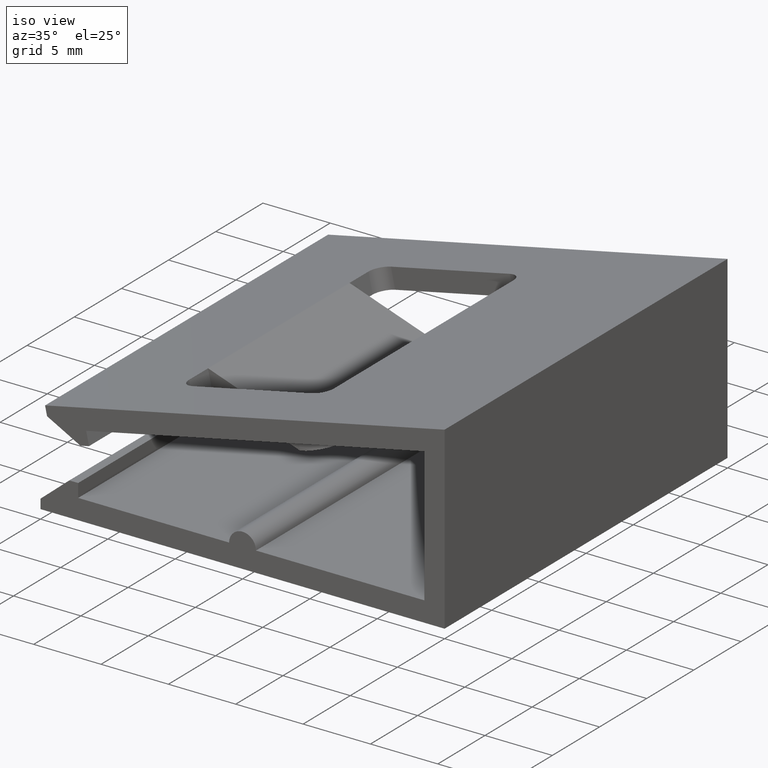
[diagram: clean part render]
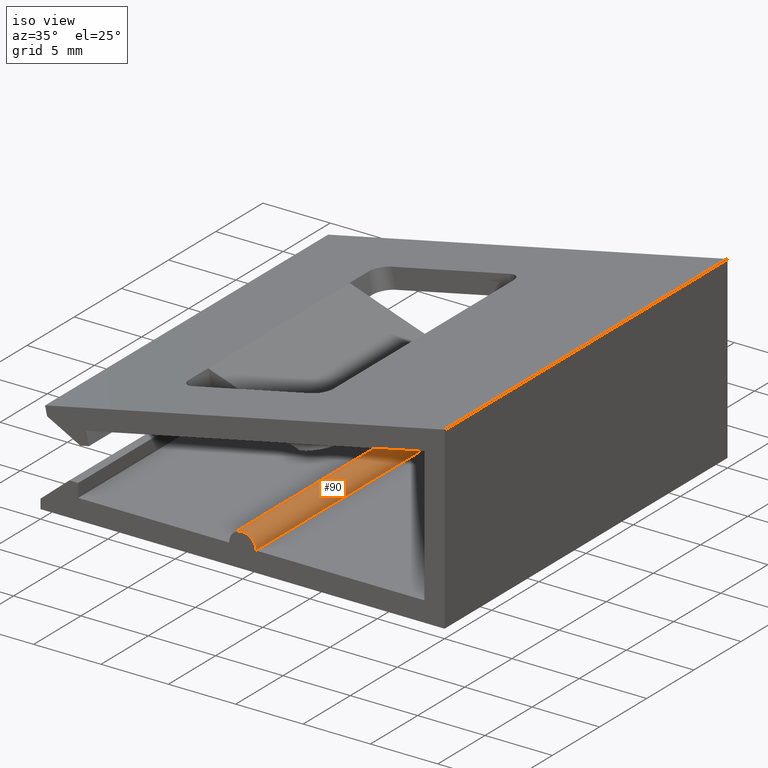
[diagram: same view with one face highlighted and labeled with its STEP entity id]
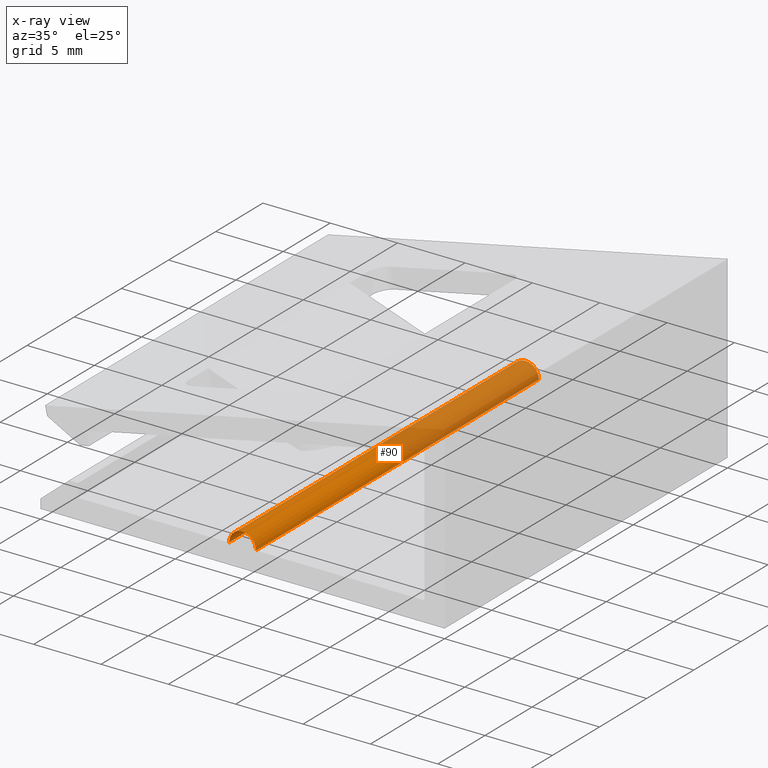
[diagram: x-ray of the same camera — body ghosted, the highlighted face saturated]
A machine part, iso view. The second image highlights one B-rep face of the part: STEP entity #90.
The next image is the same camera in x-ray: the body ghosted, the highlighted face saturated — about 47% of this face is hidden behind the body in this view.
In plain terms, the highlighted cylindrical surface (edge-blend (fillet) strip) has radius 1 mm, axis along (0, 1, 0).
Its self-contained STEP definition (entity closure, byte-faithful):
#90 = ADVANCED_FACE( '', ( #143 ), #144, .T. );
#143 = FACE_OUTER_BOUND( '', #215, .T. );
#144 = CYLINDRICAL_SURFACE( '', #216, 1.00000000000000 );
#215 = EDGE_LOOP( '', ( #392, #393, #394, #395 ) );
#216 = AXIS2_PLACEMENT_3D( '', #396, #397, #398 );
#392 = ORIENTED_EDGE( '', *, *, #615, .F. );
#393 = ORIENTED_EDGE( '', *, *, #616, .F. );
#394 = ORIENTED_EDGE( '', *, *, #599, .T. );
#395 = ORIENTED_EDGE( '', *, *, #614, .T. );
#396 = CARTESIAN_POINT( '', ( 1.56125112837913E-014, 15.0000000000000, 1.50000000000001 ) );
#397 = DIRECTION( '', ( 6.12303176911189E-017, 1.00000000000000, 1.83690953073357E-016 ) );
#398 = DIRECTION( '', ( 1.00000000000000, -6.12303176911189E-017, 0.000000000000000 ) );
#599 = EDGE_CURVE( '', #736, #734, #737, .T. );
#614 = EDGE_CURVE( '', #734, #758, #760, .T. );
#615 = EDGE_CURVE( '', #761, #758, #762, .T. );
#616 = EDGE_CURVE( '', #736, #761, #763, .T. );
#734 = VERTEX_POINT( '', #927 );
#736 = VERTEX_POINT( '', #930 );
#737 = CIRCLE( '', #931, 1.00000000000000 );
#758 = VERTEX_POINT( '', #965 );
#760 = LINE( '', #968, #969 );
#761 = VERTEX_POINT( '', #970 );
#762 = CIRCLE( '', #971, 1.00000000000000 );
#763 = LINE( '', #972, #973 );
#927 = CARTESIAN_POINT( '', ( -0.999999999999984, 15.0000000000000, 1.50000000000001 ) );
#930 = CARTESIAN_POINT( '', ( 1.00000000000002, 15.0000000000000, 1.50000000000001 ) );
#931 = AXIS2_PLACEMENT_3D( '', #1099, #1100, #1101 );
#965 = CARTESIAN_POINT( '', ( -0.999999999999987, -15.0000000000000, 1.50000000000000 ) );
#968 = CARTESIAN_POINT( '', ( -0.999999999999984, 15.0000000000000, 1.50000000000001 ) );
#969 = VECTOR( '', #1116, 1000.00000000000 );
#970 = CARTESIAN_POINT( '', ( 1.00000000000001, -15.0000000000000, 1.50000000000000 ) );
#971 = AXIS2_PLACEMENT_3D( '', #1117, #1118, #1119 );
#972 = CARTESIAN_POINT( '', ( 1.00000000000002, 15.0000000000000, 1.50000000000001 ) );
#973 = VECTOR( '', #1120, 1000.00000000000 );
#1099 = CARTESIAN_POINT( '', ( 1.56125112837913E-014, 15.0000000000000, 1.50000000000001 ) );
#1100 = DIRECTION( '', ( -6.12303176911189E-017, -1.00000000000000, -1.83690953073357E-016 ) );
#1101 = DIRECTION( '', ( -1.12474554136660E-032, -1.83690953073357E-016, 1.00000000000000 ) );
#1116 = DIRECTION( '', ( -6.12303176911189E-017, -1.00000000000000, -1.83690953073357E-016 ) );
#1117 = CARTESIAN_POINT( '', ( 1.38777878078145E-014, -15.0000000000000, 1.50000000000000 ) );
#1118 = DIRECTION( '', ( -6.12303176911189E-017, -1.00000000000000, -1.83690953073357E-016 ) );
#1119 = DIRECTION( '', ( -1.12474554136660E-032, -1.83690953073357E-016, 1.00000000000000 ) );
#1120 = DIRECTION( '', ( -6.12303176911189E-017, -1.00000000000000, -1.83690953073357E-016 ) );